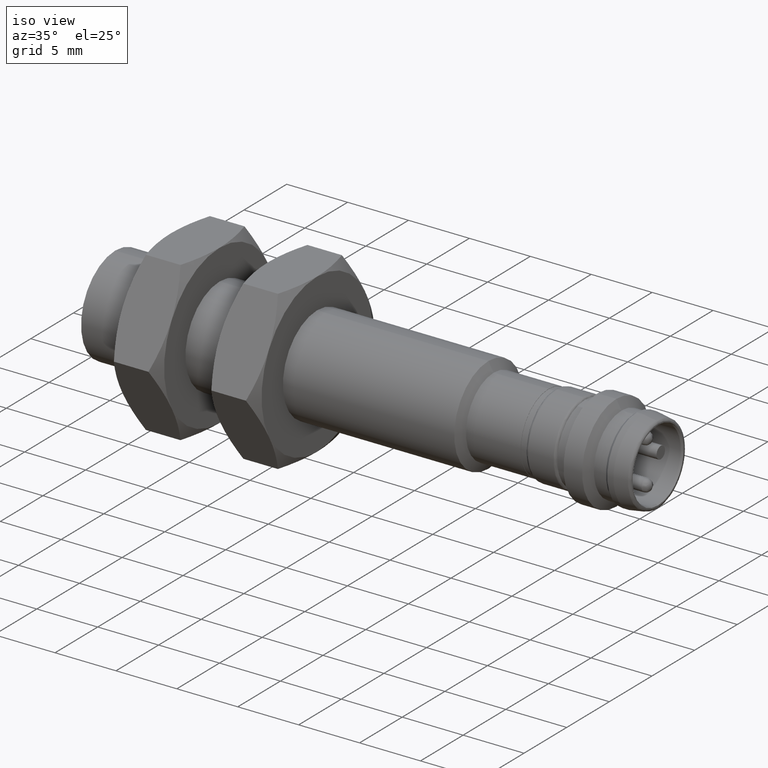
[diagram: clean part render]
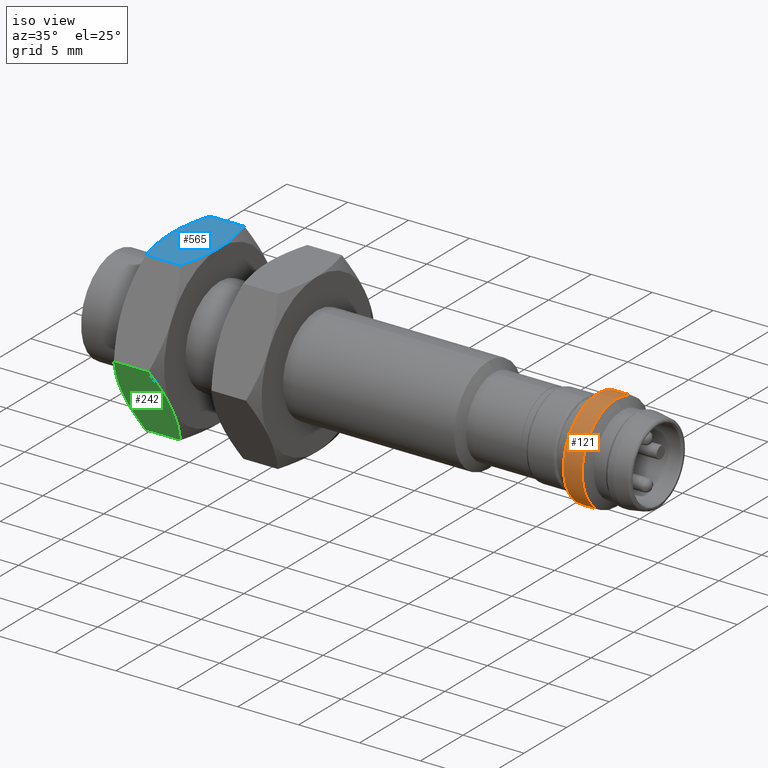
[diagram: same view with three faces highlighted in distinct colors, each labeled with its STEP entity id]
A machine part, iso view with three faces highlighted in distinct colors.
Their STEP definitions:

[orange] entity #121 — the highlighted cylindrical surface (bore or boss wall) has radius 4 mm, axis along (-1, 0, 0).
#121 = ADVANCED_FACE ( 'NONE', ( #1368, #1658 ), #1033, .T. ) ;
#188 = DIRECTION ( 'NONE',  ( -1.000000000000000000, 0.0000000000000000000, 0.0000000000000000000 ) ) ;
#251 = DIRECTION ( 'NONE',  ( 0.0000000000000000000, 0.0000000000000000000, 1.000000000000000000 ) ) ;
#366 = DIRECTION ( 'NONE',  ( 0.0000000000000000000, 0.0000000000000000000, 1.000000000000000000 ) ) ;
#427 = AXIS2_PLACEMENT_3D ( 'NONE', #1502, #842, #251 ) ;
#455 = EDGE_LOOP ( 'NONE', ( #1293 ) ) ;
#505 = ORIENTED_EDGE ( 'NONE', *, *, #598, .F. ) ;
#521 = VERTEX_POINT ( 'NONE', #1784 ) ;
#598 = EDGE_CURVE ( 'NONE', #1924, #1924, #1702, .T. ) ;
#693 = AXIS2_PLACEMENT_3D ( 'NONE', #1455, #188, #366 ) ;
#787 = CIRCLE ( 'NONE', #693, 0.1574803149606299191 ) ;
#842 = DIRECTION ( 'NONE',  ( -1.000000000000000000, 0.0000000000000000000, 0.0000000000000000000 ) ) ;
#900 = AXIS2_PLACEMENT_3D ( 'NONE', #1544, #1663, #1508 ) ;
#972 = CARTESIAN_POINT ( 'NONE',  ( 1.576102862281108408, 0.0000000000000000000, -0.1574803149613818731 ) ) ;
#1033 = CYLINDRICAL_SURFACE ( 'NONE', #427, 0.1574803149606299191 ) ;
#1201 = EDGE_CURVE ( 'NONE', #521, #521, #787, .T. ) ;
#1293 = ORIENTED_EDGE ( 'NONE', *, *, #1201, .T. ) ;
#1368 = FACE_OUTER_BOUND ( 'NONE', #1474, .T. ) ;
#1455 = CARTESIAN_POINT ( 'NONE',  ( 1.636495562917629876, 0.0000000000000000000, 0.0000000000000000000 ) ) ;
#1474 = EDGE_LOOP ( 'NONE', ( #505 ) ) ;
#1502 = CARTESIAN_POINT ( 'NONE',  ( 1.771653543307086576, 0.0000000000000000000, 0.0000000000000000000 ) ) ;
#1508 = DIRECTION ( 'NONE',  ( 0.0000000000000000000, 0.0000000000000000000, -1.000000000000000000 ) ) ;
#1544 = CARTESIAN_POINT ( 'NONE',  ( 1.576102862281108408, 0.0000000000000000000, 0.0000000000000000000 ) ) ;
#1658 = FACE_OUTER_BOUND ( 'NONE', #455, .T. ) ;
#1663 = DIRECTION ( 'NONE',  ( -1.000000000000000000, -0.0000000000000000000, -0.0000000000000000000 ) ) ;
#1702 = CIRCLE ( 'NONE', #900, 0.1574803149613818731 ) ;
#1784 = CARTESIAN_POINT ( 'NONE',  ( 1.636495562917629876, 0.0000000000000000000, 0.1574803149606299191 ) ) ;
#1924 = VERTEX_POINT ( 'NONE', #972 ) ;

[blue] entity #565 — the highlighted planar face has unit normal (0, 0, -1).
#78 = DIRECTION ( 'NONE',  ( -1.000000000000000000, 0.0000000000000000000, -0.0000000000000000000 ) ) ;
#79 = ORIENTED_EDGE ( 'NONE', *, *, #1101, .F. ) ;
#156 = B_SPLINE_CURVE_WITH_KNOTS ( 'NONE', 3,
 ( #356, #1929, #1308, #1939 ),
 .UNSPECIFIED., .F., .F.,
 ( 4, 4 ),
 ( 3.389365127849284910E-15, 0.003797417448760029984 ),
 .UNSPECIFIED. ) ;
#243 = CARTESIAN_POINT ( 'NONE',  ( 0.3314741498731840763, 0.1477471174430652068, 0.2559055118110236116 ) ) ;
#246 = PLANE ( 'NONE',  #372 ) ;
#253 = CARTESIAN_POINT ( 'NONE',  ( 0.2197069521089375921, -0.1477471161311114944, 0.2559055118111831506 ) ) ;
#264 = CARTESIAN_POINT ( 'NONE',  ( 0.2197069521089375921, -0.1477471161311114944, 0.2559055118111831506 ) ) ;
#334 = VECTOR ( 'NONE', #620, 39.37007874015748143 ) ;
#356 = CARTESIAN_POINT ( 'NONE',  ( 0.1968503936997711423, 2.350453995743647572E-17, 0.2559055118124738404 ) ) ;
#372 = AXIS2_PLACEMENT_3D ( 'NONE', #1969, #593, #78 ) ;
#397 = FACE_OUTER_BOUND ( 'NONE', #674, .T. ) ;
#415 = CARTESIAN_POINT ( 'NONE',  ( 0.2057720429311318822, -0.09947517474283928962, 0.2559055118110236671 ) ) ;
#426 = ORIENTED_EDGE ( 'NONE', *, *, #1748, .F. ) ;
#468 = EDGE_CURVE ( 'NONE', #1568, #757, #156, .T. ) ;
#506 = CARTESIAN_POINT ( 'NONE',  ( 0.3314741498731847980, -0.1477471154752739990, 0.2559055129471269896 ) ) ;
#565 = ADVANCED_FACE ( 'NONE', ( #397 ), #246, .F. ) ;
#593 = DIRECTION ( 'NONE',  ( 0.0000000000000000000, 0.0000000000000000000, -1.000000000000000000 ) ) ;
#602 = EDGE_CURVE ( 'NONE', #1346, #1488, #1463, .T. ) ;
#620 = DIRECTION ( 'NONE',  ( -1.000000000000000000, 0.0000000000000000000, -0.0000000000000000000 ) ) ;
#671 = CARTESIAN_POINT ( 'NONE',  ( 0.3314741498731847980, -0.1477471154752739990, 0.2559055129471269896 ) ) ;
#674 = EDGE_LOOP ( 'NONE', ( #426, #1780, #1683, #1882, #1423, #79 ) ) ;
#679 = CARTESIAN_POINT ( 'NONE',  ( 0.7874015748031496509, 0.1477471161312033376, 0.2559055118110235560 ) ) ;
#711 = CARTESIAN_POINT ( 'NONE',  ( 0.3543307086612142442, -3.917423324042395762E-17, 0.2559055118109733740 ) ) ;
#740 = VECTOR ( 'NONE', #1307, 39.37007874015748143 ) ;
#757 = VERTEX_POINT ( 'NONE', #1074 ) ;
#822 = VERTEX_POINT ( 'NONE', #506 ) ;
#1074 = CARTESIAN_POINT ( 'NONE',  ( 0.2197069521089375088, 0.1477471161313875236, 0.2559055118110236116 ) ) ;
#1101 = EDGE_CURVE ( 'NONE', #822, #1918, #1418, .T. ) ;
#1189 = CARTESIAN_POINT ( 'NONE',  ( 0.3454090599239539316, -0.09947517206957749714, 0.2559055118110236671 ) ) ;
#1229 = CARTESIAN_POINT ( 'NONE',  ( 0.3314741498731840763, 0.1477471174430652068, 0.2559055118110236116 ) ) ;
#1259 = CARTESIAN_POINT ( 'NONE',  ( 0.1968503936997711423, 2.350453995743647572E-17, 0.2559055118124738404 ) ) ;
#1307 = DIRECTION ( 'NONE',  ( -1.000000000000000000, -0.0000000000000000000, -0.0000000000000000000 ) ) ;
#1308 = CARTESIAN_POINT ( 'NONE',  ( 0.2057720429311069299, 0.09947517474275263671, 0.2559055118110236671 ) ) ;
#1312 = EDGE_CURVE ( 'NONE', #1346, #757, #1622, .T. ) ;
#1340 = CARTESIAN_POINT ( 'NONE',  ( 0.3543307086611852119, 0.05042767986388974055, 0.2559055118110236671 ) ) ;
#1346 = VERTEX_POINT ( 'NONE', #243 ) ;
#1351 = CARTESIAN_POINT ( 'NONE',  ( 0.3543307086611852119, -0.05042767795038331086, 0.2559055118110236671 ) ) ;
#1418 = LINE ( 'NONE', #2039, #334 ) ;
#1423 = ORIENTED_EDGE ( 'NONE', *, *, #1910, .F. ) ;
#1463 = B_SPLINE_CURVE_WITH_KNOTS ( 'NONE', 3,
 ( #1229, #1498, #1340, #711 ),
 .UNSPECIFIED., .F., .F.,
 ( 4, 4 ),
 ( 3.139848978778966075E-11, 0.003797417514551294782 ),
 .UNSPECIFIED. ) ;
#1484 = CARTESIAN_POINT ( 'NONE',  ( 0.3543307086612142442, -3.917423324042395762E-17, 0.2559055118109733740 ) ) ;
#1488 = VERTEX_POINT ( 'NONE', #1662 ) ;
#1498 = CARTESIAN_POINT ( 'NONE',  ( 0.3454090581084046097, 0.09947517675737441167, 0.2559055103340880377 ) ) ;
#1516 = CARTESIAN_POINT ( 'NONE',  ( 0.1968503936989327019, -0.05042767934085214121, 0.2559055118110236671 ) ) ;
#1568 = VERTEX_POINT ( 'NONE', #1259 ) ;
#1622 = LINE ( 'NONE', #679, #740 ) ;
#1662 = CARTESIAN_POINT ( 'NONE',  ( 0.3543307086612142442, -3.917423324042395762E-17, 0.2559055118109733740 ) ) ;
#1681 = CARTESIAN_POINT ( 'NONE',  ( 0.1968503936997711423, 2.350453995743647572E-17, 0.2559055118124738404 ) ) ;
#1683 = ORIENTED_EDGE ( 'NONE', *, *, #1312, .T. ) ;
#1699 = B_SPLINE_CURVE_WITH_KNOTS ( 'NONE', 3,
 ( #253, #415, #1516, #1681 ),
 .UNSPECIFIED., .F., .F.,
 ( 4, 4 ),
 ( 1.176090477054957868E-14, 0.003797417448761473708 ),
 .UNSPECIFIED. ) ;
#1748 = EDGE_CURVE ( 'NONE', #1488, #822, #1965, .T. ) ;
#1780 = ORIENTED_EDGE ( 'NONE', *, *, #602, .F. ) ;
#1882 = ORIENTED_EDGE ( 'NONE', *, *, #468, .F. ) ;
#1910 = EDGE_CURVE ( 'NONE', #1918, #1568, #1699, .T. ) ;
#1918 = VERTEX_POINT ( 'NONE', #264 ) ;
#1929 = CARTESIAN_POINT ( 'NONE',  ( 0.1968503936988983405, 0.05042767934095616911, 0.2559055118110851734 ) ) ;
#1939 = CARTESIAN_POINT ( 'NONE',  ( 0.2197069521089375088, 0.1477471161313875236, 0.2559055118110236116 ) ) ;
#1965 = B_SPLINE_CURVE_WITH_KNOTS ( 'NONE', 3,
 ( #1484, #1351, #1189, #671 ),
 .UNSPECIFIED., .F., .F.,
 ( 4, 4 ),
 ( 1.121549771222648017E-16, 0.003797417346080600789 ),
 .UNSPECIFIED. ) ;
#1969 = CARTESIAN_POINT ( 'NONE',  ( 0.7874015748031496509, 0.1477471161312035597, 0.2559055118110236671 ) ) ;
#2039 = CARTESIAN_POINT ( 'NONE',  ( 0.7874015748031496509, -0.1477471161312035597, 0.2559055118110236671 ) ) ;

[green] entity #242 — the highlighted planar face has unit normal (-0, 0.866, 0.5).
#34 = LINE ( 'NONE', #781, #1927 ) ;
#86 = CARTESIAN_POINT ( 'NONE',  ( 0.3314741498731838543, -0.2954942329183380956, 1.136106383843973987E-09 ) ) ;
#91 = ORIENTED_EDGE ( 'NONE', *, *, #1891, .F. ) ;
#106 = CARTESIAN_POINT ( 'NONE',  ( 0.2197069521089906885, -0.1477471161312954862, -0.2559055118111830951 ) ) ;
#158 = ORIENTED_EDGE ( 'NONE', *, *, #990, .T. ) ;
#168 = VERTEX_POINT ( 'NONE', #1513 ) ;
#185 = ORIENTED_EDGE ( 'NONE', *, *, #1375, .F. ) ;
#218 = EDGE_CURVE ( 'NONE', #622, #997, #1108, .T. ) ;
#242 = ADVANCED_FACE ( 'NONE', ( #590 ), #1228, .F. ) ;
#258 = EDGE_LOOP ( 'NONE', ( #91, #1281, #158, #185, #1829, #1940 ) ) ;
#313 = DIRECTION ( 'NONE',  ( -0.0000000000000000000, 0.8660254037844387076, 0.4999999999999998890 ) ) ;
#328 = CARTESIAN_POINT ( 'NONE',  ( 0.1968503936997710591, -0.2216206741980609740, -0.1279527559062368924 ) ) ;
#434 = VECTOR ( 'NONE', #1376, 39.37007874015748143 ) ;
#442 = CARTESIAN_POINT ( 'NONE',  ( 0.3454090581084039990, -0.2713582612964283158, -0.04180472504920897114 ) ) ;
#461 = B_SPLINE_CURVE_WITH_KNOTS ( 'NONE', 3,
 ( #752, #1880, #1073, #328 ),
 .UNSPECIFIED., .F., .F.,
 ( 4, 4 ),
 ( 6.933203032500247483E-15, 0.003797417448761471973 ),
 .UNSPECIFIED. ) ;
#579 = CARTESIAN_POINT ( 'NONE',  ( 0.2197069521089375088, -0.2954942322624989348, 1.595415360398112687E-13 ) ) ;
#590 = FACE_OUTER_BOUND ( 'NONE', #258, .T. ) ;
#595 = VERTEX_POINT ( 'NONE', #872 ) ;
#622 = VERTEX_POINT ( 'NONE', #86 ) ;
#692 = VERTEX_POINT ( 'NONE', #579 ) ;
#752 = CARTESIAN_POINT ( 'NONE',  ( 0.2197069521089906885, -0.1477471161312954862, -0.2559055118111830951 ) ) ;
#781 = CARTESIAN_POINT ( 'NONE',  ( 0.7874015748031496509, -0.1477471161312035597, -0.2559055118110236671 ) ) ;
#872 = CARTESIAN_POINT ( 'NONE',  ( 0.3314741498731836322, -0.1477471174430665390, -0.2559055118110236671 ) ) ;
#990 = EDGE_CURVE ( 'NONE', #622, #692, #1041, .T. ) ;
#997 = VERTEX_POINT ( 'NONE', #2008 ) ;
#1011 = EDGE_CURVE ( 'NONE', #1874, #168, #461, .T. ) ;
#1039 = CARTESIAN_POINT ( 'NONE',  ( 0.1968503936988982017, -0.2468345138673364858, -0.08428110454237877636 ) ) ;
#1041 = LINE ( 'NONE', #1051, #434 ) ;
#1051 = CARTESIAN_POINT ( 'NONE',  ( 0.7874015748031496509, -0.2954942322624069528, 6.829619984160658046E-17 ) ) ;
#1073 = CARTESIAN_POINT ( 'NONE',  ( 0.1968503936989326186, -0.1964068345263468851, -0.1716244072686409494 ) ) ;
#1076 = CARTESIAN_POINT ( 'NONE',  ( 0.3543307086611853784, -0.2468345141287500988, -0.08428110408947392385 ) ) ;
#1108 = B_SPLINE_CURVE_WITH_KNOTS ( 'NONE', 3,
 ( #1711, #442, #1076, #1237 ),
 .UNSPECIFIED., .F., .F.,
 ( 4, 4 ),
 ( 3.139850472673692243E-11, 0.003797417514551332945 ),
 .UNSPECIFIED. ) ;
#1152 = AXIS2_PLACEMENT_3D ( 'NONE', #1269, #313, #1881 ) ;
#1177 = CARTESIAN_POINT ( 'NONE',  ( 0.2057720429311067911, -0.2713582615681812693, -0.04180472753239184575 ) ) ;
#1228 = PLANE ( 'NONE',  #1152 ) ;
#1237 = CARTESIAN_POINT ( 'NONE',  ( 0.3543307086612143553, -0.2216206741967615690, -0.1279527559054867702 ) ) ;
#1241 = B_SPLINE_CURVE_WITH_KNOTS ( 'NONE', 3,
 ( #1546, #1039, #1177, #1825 ),
 .UNSPECIFIED., .F., .F.,
 ( 4, 4 ),
 ( 3.389470585315942072E-15, 0.003797417448760035188 ),
 .UNSPECIFIED. ) ;
#1269 = CARTESIAN_POINT ( 'NONE',  ( 0.7874015748031496509, -0.2954942322624066753, 0.0000000000000000000 ) ) ;
#1281 = ORIENTED_EDGE ( 'NONE', *, *, #218, .F. ) ;
#1372 = CARTESIAN_POINT ( 'NONE',  ( 0.3543307086612143553, -0.2216206741967615690, -0.1279527559054867702 ) ) ;
#1375 = EDGE_CURVE ( 'NONE', #168, #692, #1241, .T. ) ;
#1376 = DIRECTION ( 'NONE',  ( -1.000000000000000000, 0.0000000000000000000, -0.0000000000000000000 ) ) ;
#1513 = CARTESIAN_POINT ( 'NONE',  ( 0.1968503936997710591, -0.2216206741980609740, -0.1279527559062368924 ) ) ;
#1525 = CARTESIAN_POINT ( 'NONE',  ( 0.3454090599239554860, -0.1718830881620202478, -0.2141007819635873111 ) ) ;
#1546 = CARTESIAN_POINT ( 'NONE',  ( 0.1968503936997710591, -0.2216206741980609740, -0.1279527559062368924 ) ) ;
#1612 = DIRECTION ( 'NONE',  ( 1.000000000000000000, 0.0000000000000000000, -0.0000000000000000000 ) ) ;
#1657 = EDGE_CURVE ( 'NONE', #1874, #595, #34, .T. ) ;
#1672 = CARTESIAN_POINT ( 'NONE',  ( 0.3314741498731836322, -0.1477471174430665390, -0.2559055118110236671 ) ) ;
#1711 = CARTESIAN_POINT ( 'NONE',  ( 0.3314741498731838543, -0.2954942329183380956, 1.136106383843973987E-09 ) ) ;
#1825 = CARTESIAN_POINT ( 'NONE',  ( 0.2197069521089375088, -0.2954942322624989348, 1.595415360398112687E-13 ) ) ;
#1829 = ORIENTED_EDGE ( 'NONE', *, *, #1011, .F. ) ;
#1837 = CARTESIAN_POINT ( 'NONE',  ( 0.3543307086611853784, -0.1964068352216154500, -0.1716244060644006031 ) ) ;
#1874 = VERTEX_POINT ( 'NONE', #106 ) ;
#1880 = CARTESIAN_POINT ( 'NONE',  ( 0.2057720429311140908, -0.1718830868254161148, -0.2141007842786535609 ) ) ;
#1881 = DIRECTION ( 'NONE',  ( 0.0000000000000000000, -0.4999999999999998335, 0.8660254037844385966 ) ) ;
#1891 = EDGE_CURVE ( 'NONE', #997, #595, #2033, .T. ) ;
#1927 = VECTOR ( 'NONE', #1612, 39.37007874015748143 ) ;
#1940 = ORIENTED_EDGE ( 'NONE', *, *, #1657, .T. ) ;
#2008 = CARTESIAN_POINT ( 'NONE',  ( 0.3543307086612143553, -0.2216206741967615690, -0.1279527559054867702 ) ) ;
#2033 = B_SPLINE_CURVE_WITH_KNOTS ( 'NONE', 3,
 ( #1372, #1837, #1525, #1672 ),
 .UNSPECIFIED., .F., .F.,
 ( 4, 4 ),
 ( 1.121088114244009779E-16, 0.003797417346080296779 ),
 .UNSPECIFIED. ) ;